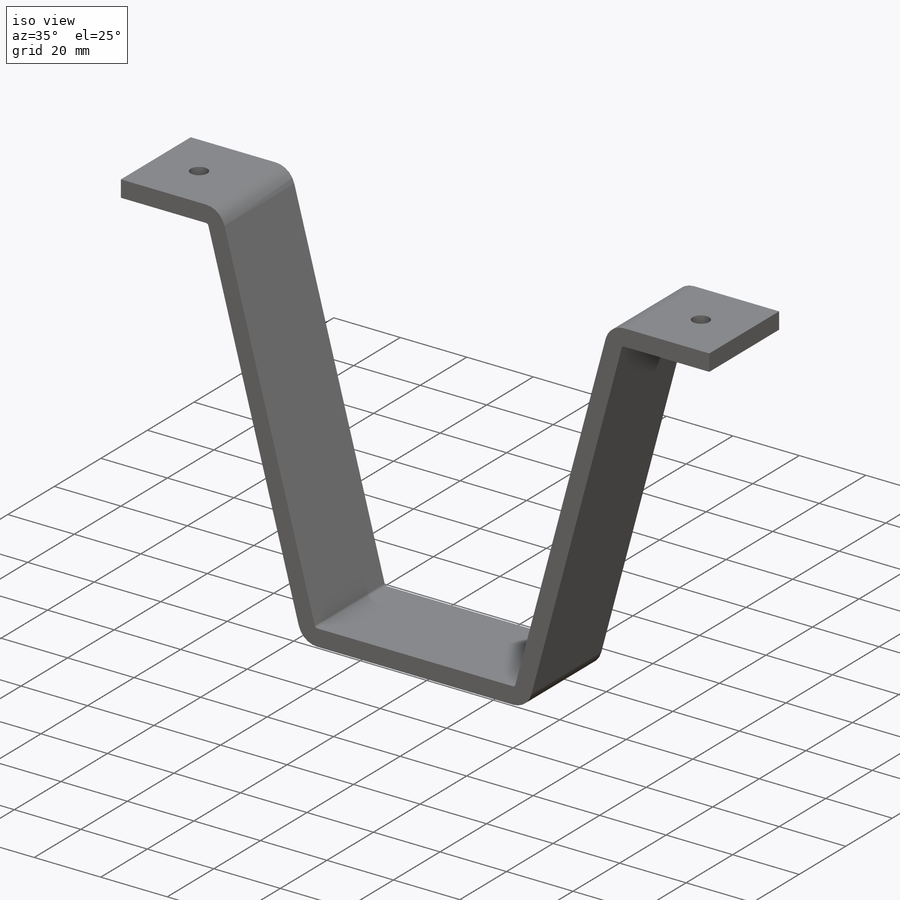
[diagram: iso view]
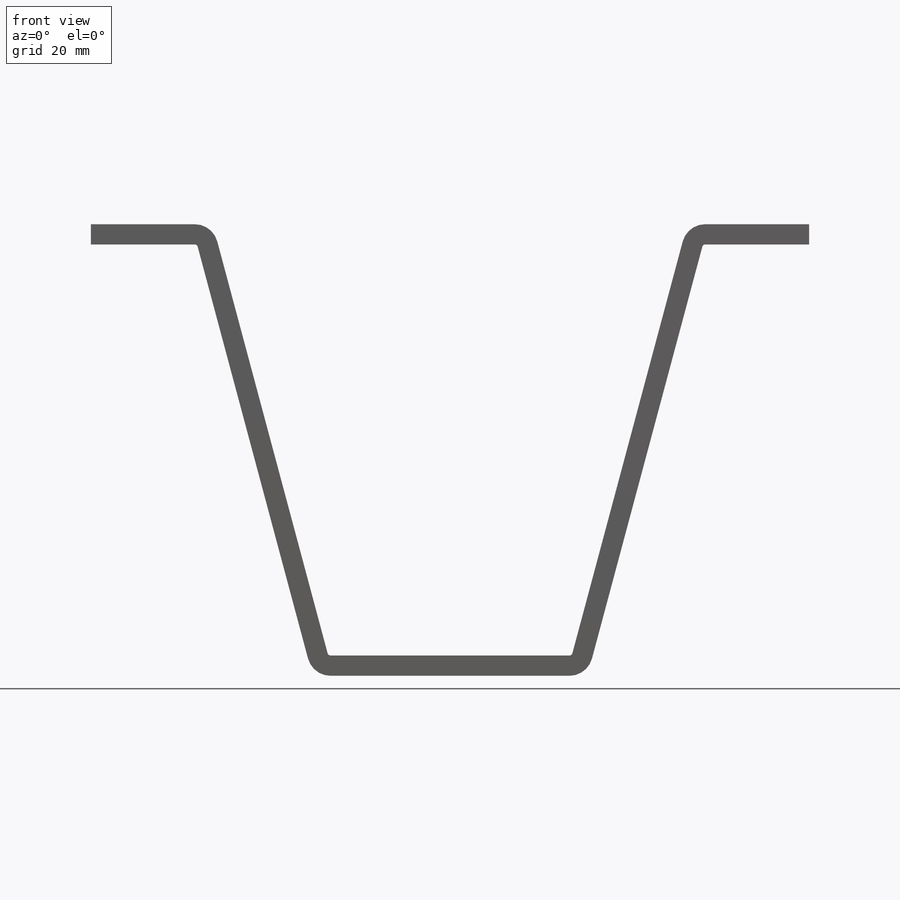
[diagram: front view]
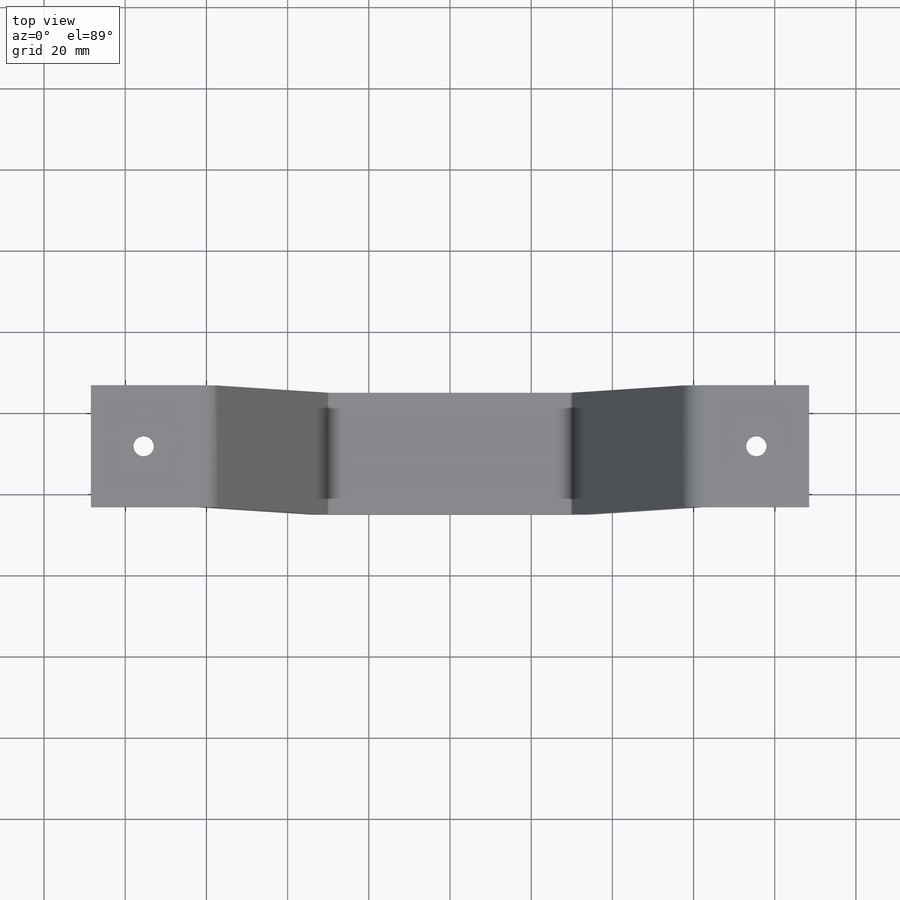
[diagram: top view]
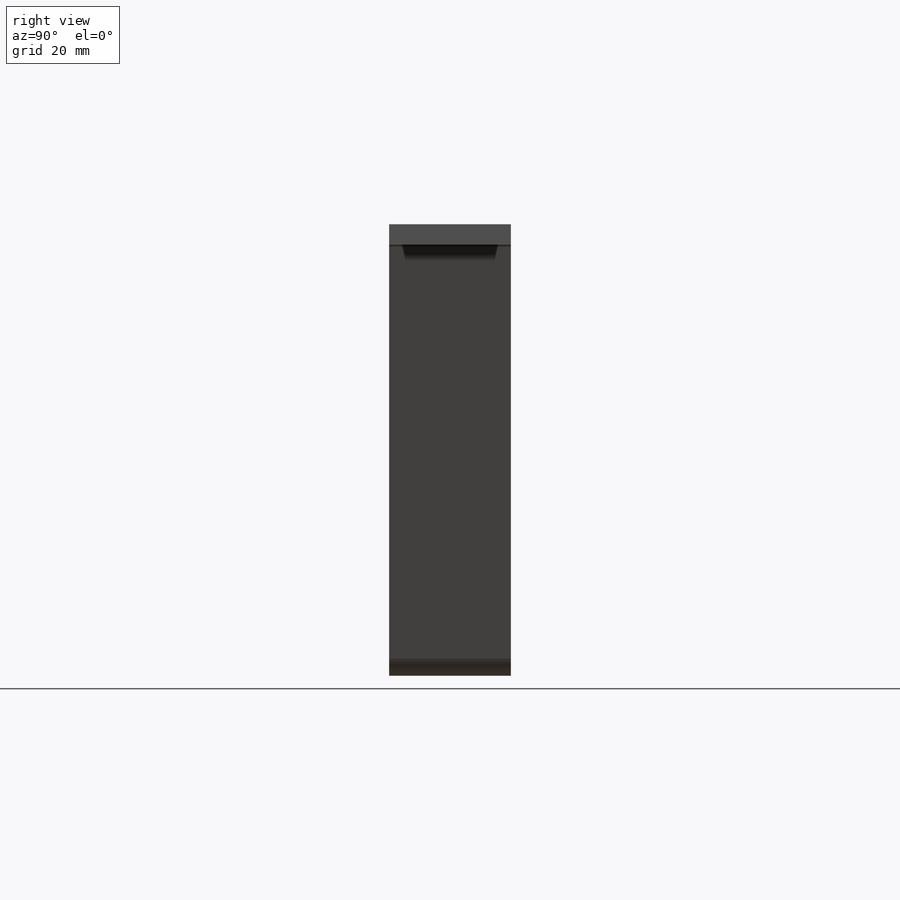
[diagram: right view]
SOLIDWORKS PART (.sldprt)
format: sldprt  version: not decoded by parser v0  size: 269,312 bytes
history: native  units: mm
features: sketch x8, sheet_metal_op x5, material x1, hole x1 + 4 further entries (+16 scaffold rows collapsed; 1 parser-record rows omitted)
feature tree (36):
  scaffold x16  (default folders/planes/origin — collapsed)
  material  "1023 Carbon Steel Sheet (SS)"
  sketch  "Sketch1"  dims[c1.D1=~86.427397mm c2.D1=30.0mm c2.D2=30.0mm c2.D3=60.0mm c2.D4=25.0mm]
  sheet_metal_op  "Sheet-Metal1"  Thickness=5mm
  sheet_metal_op  "Base-Flange1"
  sketch  "Sketch8"
  sketch  "Sketch9"  dims[D1=0.7366mm D4=75.0deg D5=1.0 D8=2.5mm D9=2.5mm]
  sheet_metal_op  "EdgeBend2"  Edge-Flange2=0
  sketch  "Sketch14"
  sketch  "Sketch15"
  sheet_metal_op  "EdgeBend3"
  sheet_metal_op  "EdgeBend4"
  hole  "Ø5.0 (5) Diameter Hole1"  Diameter=5mm Depth=11mm
  sketch  "Sketch17"  dims[D1=15.0mm D2=13.0mm D3=13.0mm D4=15.0mm]
  sketch  "Sketch16"  dims[hole-wizard template sketch: 50 standard entries collapsed; hole parameters above]
  "Flat-Pattern1"
  sketch  "Bend-Lines1"
  parser-record x1  (decoder bookkeeping rows leaked as tree rows — omitted from the tree; the rows remain in map.json)
  "Flatten-<EdgeBend2>1"
  "Flatten-<EdgeBend3>1"
  "Flatten-<EdgeBend4>1"
decode coverage: 7 of 14 modeling features carry decoded parameters; 4 rows unclassified (native names shown)
note: ~ marks probable driven/reference dimensions
note: suppression state not decoded; provenance and decode notes live in map.json
